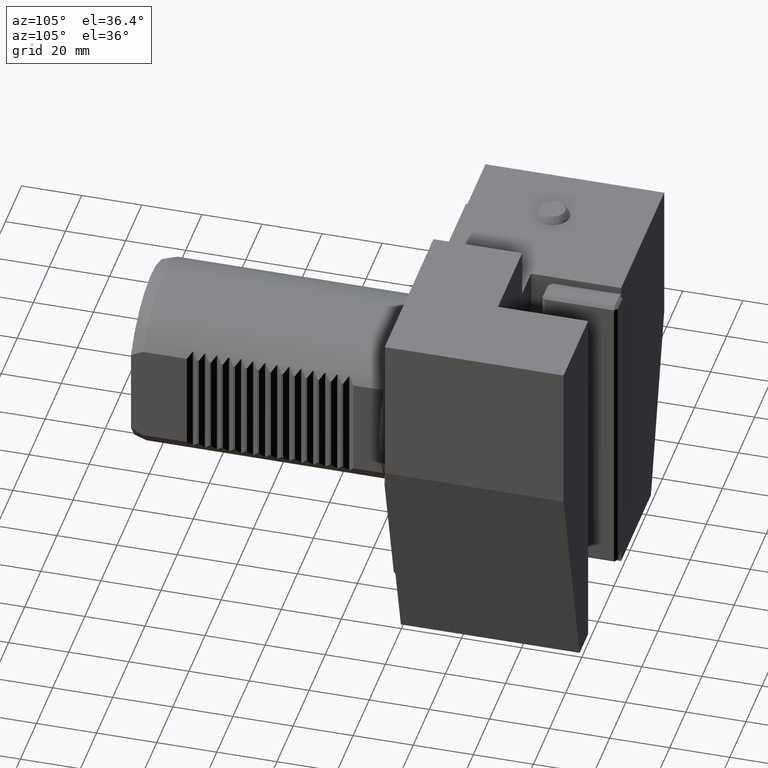
[diagram: clean part render]
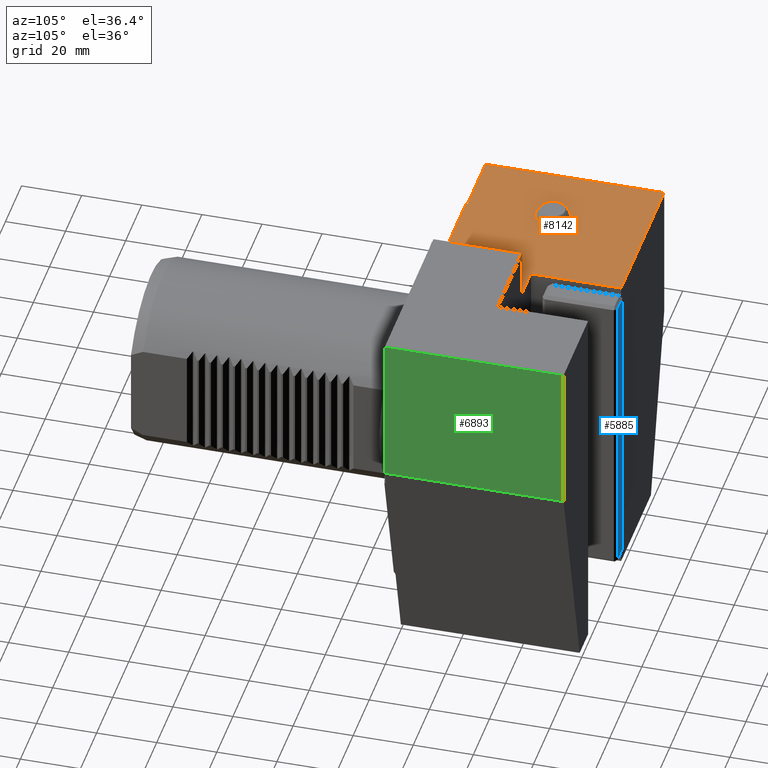
[diagram: same view with three faces highlighted in distinct colors, each labeled with its STEP entity id]
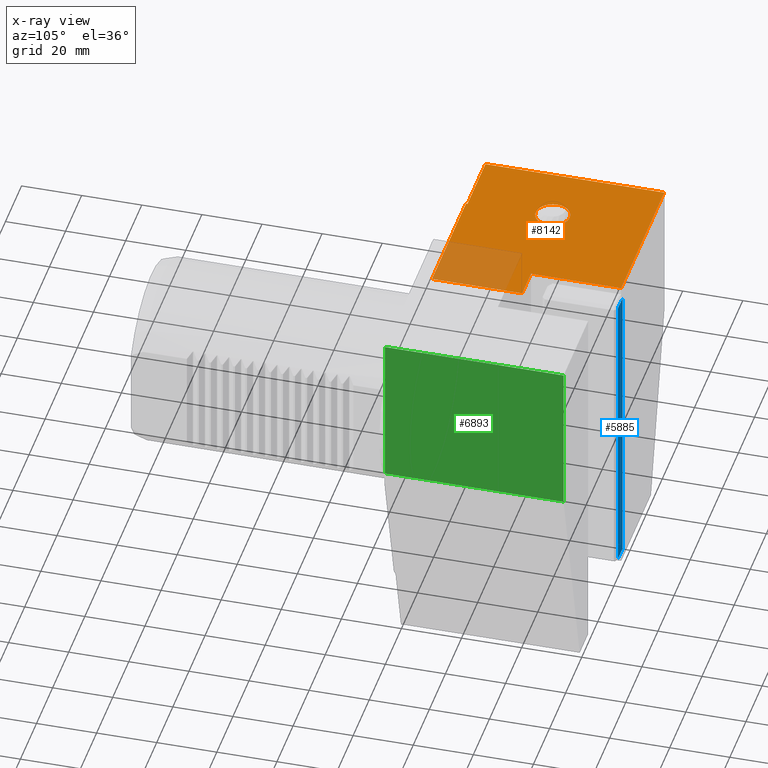
[diagram: x-ray of the same camera — body ghosted, the three highlighted faces saturated]
A machine part, auxiliary view with three faces highlighted in distinct colors.
The next image is the same camera in x-ray (body ghosted, the three faces saturated) — at least one of them is partly hidden behind the body in this view.
Their STEP definitions:

[orange] entity #8142 — the highlighted planar face has unit normal (-0, 0, 1).
#117 = LINE ( 'NONE', #4486, #17101 ) ;
#141 = LINE ( 'NONE', #6569, #13333 ) ;
#379 = DIRECTION ( 'NONE',  ( 1.838841177024792856E-16, -1.000000000000000000, 0.000000000000000000 ) ) ;
#688 = CARTESIAN_POINT ( 'NONE',  ( -40.24922359499620939, -5.213768408828317327E-15, 46.50000000000000000 ) ) ;
#690 = ORIENTED_EDGE ( 'NONE', *, *, #12180, .F. ) ;
#745 = VERTEX_POINT ( 'NONE', #7864 ) ;
#1644 = EDGE_LOOP ( 'NONE', ( #690, #13263, #18852, #10555, #18904, #2037, #10978, #17504 ) ) ;
#2037 = ORIENTED_EDGE ( 'NONE', *, *, #8808, .F. ) ;
#2222 = VERTEX_POINT ( 'NONE', #8636 ) ;
#2811 = VERTEX_POINT ( 'NONE', #15025 ) ;
#3014 = DIRECTION ( 'NONE',  ( -1.295371175675670527E-16, 1.000000000000000000, -0.000000000000000000 ) ) ;
#3052 = CARTESIAN_POINT ( 'NONE',  ( -32.14999999999999147, -5.085353770183706577E-16, 46.50000000000000000 ) ) ;
#3674 = CARTESIAN_POINT ( 'NONE',  ( -41.60000000000001563, 28.50000000000000000, 46.50000000000000000 ) ) ;
#4011 = DIRECTION ( 'NONE',  ( -1.295371175675670281E-16, 1.000000000000000000, -0.000000000000000000 ) ) ;
#4180 = DIRECTION ( 'NONE',  ( 1.000000000000000000, 0.000000000000000000, 0.000000000000000000 ) ) ;
#4462 = DIRECTION ( 'NONE',  ( -0.000000000000000000, 0.000000000000000000, 1.000000000000000000 ) ) ;
#4486 = CARTESIAN_POINT ( 'NONE',  ( 2.000000000000009326, -28.00000000000001776, 46.50000000000000000 ) ) ;
#4910 = EDGE_CURVE ( 'NONE', #2811, #7397, #141, .T. ) ;
#4931 = DIRECTION ( 'NONE',  ( -1.000000000000000000, -1.295371175675670281E-16, 0.000000000000000000 ) ) ;
#5472 = LINE ( 'NONE', #14524, #12101 ) ;
#5527 = VERTEX_POINT ( 'NONE', #18070 ) ;
#5738 = VERTEX_POINT ( 'NONE', #19752 ) ;
#5818 = PLANE ( 'NONE',  #7810 ) ;
#5924 = FACE_OUTER_BOUND ( 'NONE', #1644, .T. ) ;
#6569 = CARTESIAN_POINT ( 'NONE',  ( -61.50000000000000000, 0.4999999999999962252, 46.50000000000000000 ) ) ;
#7248 = DIRECTION ( 'NONE',  ( 1.000000000000000000, 1.075797504481740896E-16, 0.000000000000000000 ) ) ;
#7312 = VERTEX_POINT ( 'NONE', #11038 ) ;
#7316 = LINE ( 'NONE', #688, #18583 ) ;
#7397 = VERTEX_POINT ( 'NONE', #7860 ) ;
#7454 = DIRECTION ( 'NONE',  ( 1.000000000000000000, 0.000000000000000000, 0.000000000000000000 ) ) ;
#7493 = ORIENTED_EDGE ( 'NONE', *, *, #16817, .F. ) ;
#7671 = EDGE_CURVE ( 'NONE', #10462, #745, #19827, .T. ) ;
#7686 = CARTESIAN_POINT ( 'NONE',  ( -62.49999999999998579, 30.00000000000000000, 46.50000000000000000 ) ) ;
#7810 = AXIS2_PLACEMENT_3D ( 'NONE', #15074, #4462, #7454 ) ;
#7860 = CARTESIAN_POINT ( 'NONE',  ( -62.49999999999999289, 0.4999999999999970024, 46.50000000000000000 ) ) ;
#7864 = CARTESIAN_POINT ( 'NONE',  ( 2.000000000000001776, 30.00000000000000000, 46.50000000000000000 ) ) ;
#7884 = DIRECTION ( 'NONE',  ( -1.295371175675670527E-16, 1.000000000000000000, -0.000000000000000000 ) ) ;
#8142 = ADVANCED_FACE ( 'Defeature completata2_79', ( #12299, #5924 ), #5818, .T. ) ;
#8636 = CARTESIAN_POINT ( 'NONE',  ( 2.000000000000005773, 0.000000000000000000, 46.50000000000000000 ) ) ;
#8796 = CARTESIAN_POINT ( 'NONE',  ( -62.50000000000000000, 59.99999999999998579, 46.50000000000000000 ) ) ;
#8808 = EDGE_CURVE ( 'NONE', #2222, #7312, #14228, .T. ) ;
#8871 = AXIS2_PLACEMENT_3D ( 'NONE', #3674, #19555, #14617 ) ;
#9542 = CARTESIAN_POINT ( 'NONE',  ( -62.49999999999998579, -28.00000000000002487, 46.50000000000000000 ) ) ;
#9687 = DIRECTION ( 'NONE',  ( -1.000000000000000000, -1.295371175675670281E-16, 0.000000000000000000 ) ) ;
#9929 = CARTESIAN_POINT ( 'NONE',  ( -9.000000000000003553, 30.00000000000000000, 46.49999999999992895 ) ) ;
#10462 = VERTEX_POINT ( 'NONE', #9929 ) ;
#10555 = ORIENTED_EDGE ( 'NONE', *, *, #4910, .F. ) ;
#10616 = CARTESIAN_POINT ( 'NONE',  ( -62.50000000000000000, 59.99999999999998579, 46.50000000000000000 ) ) ;
#10978 = ORIENTED_EDGE ( 'NONE', *, *, #16198, .T. ) ;
#11038 = CARTESIAN_POINT ( 'NONE',  ( -40.24922359499620939, -4.206666086877655496E-15, 46.50000000000000000 ) ) ;
#11091 = VECTOR ( 'NONE', #9687, 1000.000000000000000 ) ;
#11273 = EDGE_LOOP ( 'NONE', ( #7493 ) ) ;
#11804 = VECTOR ( 'NONE', #3014, 1000.000000000000000 ) ;
#12101 = VECTOR ( 'NONE', #379, 1000.000000000000000 ) ;
#12180 = EDGE_CURVE ( 'NONE', #5738, #10462, #5472, .T. ) ;
#12299 = FACE_BOUND ( 'NONE', #11273, .T. ) ;
#13263 = ORIENTED_EDGE ( 'NONE', *, *, #15670, .F. ) ;
#13333 = VECTOR ( 'NONE', #4931, 1000.000000000000000 ) ;
#13468 = EDGE_CURVE ( 'NONE', #7397, #14028, #13988, .T. ) ;
#13988 = LINE ( 'NONE', #9542, #11804 ) ;
#14028 = VERTEX_POINT ( 'NONE', #10616 ) ;
#14228 = LINE ( 'NONE', #3052, #11091 ) ;
#14524 = CARTESIAN_POINT ( 'NONE',  ( -8.999999999999987566, -28.00000000000001421, 46.50000000000000000 ) ) ;
#14617 = DIRECTION ( 'NONE',  ( 1.000000000000000000, 0.000000000000000000, 0.000000000000000000 ) ) ;
#15025 = CARTESIAN_POINT ( 'NONE',  ( -40.24922359499620939, 0.4999999999999985012, 46.50000000000000000 ) ) ;
#15074 = CARTESIAN_POINT ( 'NONE',  ( -62.49999999999998579, -28.00000000000002487, 46.50000000000000000 ) ) ;
#15670 = EDGE_CURVE ( 'NONE', #14028, #5738, #16417, .T. ) ;
#16198 = EDGE_CURVE ( 'NONE', #2222, #745, #117, .T. ) ;
#16417 = LINE ( 'NONE', #8796, #18059 ) ;
#16817 = EDGE_CURVE ( 'NONE', #5527, #5527, #17743, .T. ) ;
#17101 = VECTOR ( 'NONE', #7884, 1000.000000000000000 ) ;
#17504 = ORIENTED_EDGE ( 'NONE', *, *, #7671, .F. ) ;
#17743 = CIRCLE ( 'NONE', #8871, 5.671237021169534209 ) ;
#18059 = VECTOR ( 'NONE', #7248, 1000.000000000000000 ) ;
#18070 = CARTESIAN_POINT ( 'NONE',  ( -35.92876297883048409, 28.50000000000000000, 46.50000000000000000 ) ) ;
#18583 = VECTOR ( 'NONE', #4011, 1000.000000000000000 ) ;
#18633 = VECTOR ( 'NONE', #4180, 1000.000000000000000 ) ;
#18852 = ORIENTED_EDGE ( 'NONE', *, *, #13468, .F. ) ;
#18904 = ORIENTED_EDGE ( 'NONE', *, *, #19878, .F. ) ;
#19555 = DIRECTION ( 'NONE',  ( -0.000000000000000000, 0.000000000000000000, 1.000000000000000000 ) ) ;
#19752 = CARTESIAN_POINT ( 'NONE',  ( -9.000000000000007105, 59.99999999999999289, 46.50000000000000000 ) ) ;
#19827 = LINE ( 'NONE', #7686, #18633 ) ;
#19878 = EDGE_CURVE ( 'NONE', #7312, #2811, #7316, .T. ) ;

[blue] entity #5885 — the highlighted planar face has unit normal (0, -1, 0).
#714 = DIRECTION ( 'NONE',  ( 1.000000000000000000, 1.838841177024793102E-16, 0.000000000000000000 ) ) ;
#1112 = VERTEX_POINT ( 'NONE', #4098 ) ;
#1285 = LINE ( 'NONE', #7820, #18983 ) ;
#1370 = ORIENTED_EDGE ( 'NONE', *, *, #9801, .T. ) ;
#2987 = VECTOR ( 'NONE', #714, 1000.000000000000000 ) ;
#3444 = VERTEX_POINT ( 'NONE', #5720 ) ;
#4064 = ORIENTED_EDGE ( 'NONE', *, *, #12454, .T. ) ;
#4098 = CARTESIAN_POINT ( 'NONE',  ( -7.000000000000007994, 60.99999999999998579, -56.00000000000001421 ) ) ;
#5246 = VERTEX_POINT ( 'NONE', #13121 ) ;
#5359 = LINE ( 'NONE', #17699, #13136 ) ;
#5720 = CARTESIAN_POINT ( 'NONE',  ( -7.000000000000007994, 60.99999999999998579, 43.99999999999999289 ) ) ;
#5806 = CARTESIAN_POINT ( 'NONE',  ( -8.673617379884035472E-15, 60.99999999999998579, 43.99999999999999289 ) ) ;
#5884 = DIRECTION ( 'NONE',  ( 1.838841177024793102E-16, -1.000000000000000000, 0.000000000000000000 ) ) ;
#5885 = ADVANCED_FACE ( 'Defeature completata1_2', ( #15147 ), #16785, .F. ) ;
#7676 = VERTEX_POINT ( 'NONE', #18379 ) ;
#7820 = CARTESIAN_POINT ( 'NONE',  ( -7.000000000000007994, 60.99999999999998579, 44.99999999999999289 ) ) ;
#8195 = ORIENTED_EDGE ( 'NONE', *, *, #19625, .T. ) ;
#9801 = EDGE_CURVE ( 'NONE', #3444, #5246, #19389, .T. ) ;
#10151 = CARTESIAN_POINT ( 'NONE',  ( -1.000000000000009104, 60.99999999999998579, -57.00000000000001421 ) ) ;
#11634 = DIRECTION ( 'NONE',  ( -1.000000000000000000, -1.838841177024793102E-16, 0.000000000000000000 ) ) ;
#12262 = CARTESIAN_POINT ( 'NONE',  ( -8.673617379884035472E-15, 60.99999999999998579, 44.99999999999999289 ) ) ;
#12454 = EDGE_CURVE ( 'NONE', #1112, #3444, #1285, .T. ) ;
#13121 = CARTESIAN_POINT ( 'NONE',  ( -1.000000000000009104, 60.99999999999998579, 43.99999999999999289 ) ) ;
#13136 = VECTOR ( 'NONE', #11634, 1000.000000000000000 ) ;
#14821 = ORIENTED_EDGE ( 'NONE', *, *, #14850, .T. ) ;
#14850 = EDGE_CURVE ( 'NONE', #7676, #1112, #5359, .T. ) ;
#15147 = FACE_OUTER_BOUND ( 'NONE', #16050, .T. ) ;
#15243 = DIRECTION ( 'NONE',  ( 1.000000000000000000, 1.838841177024793102E-16, 0.000000000000000000 ) ) ;
#15298 = AXIS2_PLACEMENT_3D ( 'NONE', #12262, #5884, #15243 ) ;
#15310 = VECTOR ( 'NONE', #16433, 1000.000000000000000 ) ;
#15832 = DIRECTION ( 'NONE',  ( 1.549043783309398025E-32, 0.000000000000000000, 1.000000000000000000 ) ) ;
#16050 = EDGE_LOOP ( 'NONE', ( #8195, #14821, #4064, #1370 ) ) ;
#16433 = DIRECTION ( 'NONE',  ( -1.549043783309398025E-32, 0.000000000000000000, -1.000000000000000000 ) ) ;
#16785 = PLANE ( 'NONE',  #15298 ) ;
#17699 = CARTESIAN_POINT ( 'NONE',  ( -8.673617379884035472E-15, 60.99999999999998579, -56.00000000000001421 ) ) ;
#18164 = LINE ( 'NONE', #10151, #15310 ) ;
#18379 = CARTESIAN_POINT ( 'NONE',  ( -1.000000000000009104, 60.99999999999998579, -56.00000000000001421 ) ) ;
#18983 = VECTOR ( 'NONE', #15832, 1000.000000000000000 ) ;
#19389 = LINE ( 'NONE', #5806, #2987 ) ;
#19625 = EDGE_CURVE ( 'NONE', #5246, #7676, #18164, .T. ) ;

[green] entity #6893 — the highlighted planar face has unit normal (1, 0, 0).
#1618 = EDGE_LOOP ( 'NONE', ( #19278, #12668, #8529, #4606 ) ) ;
#2373 = CARTESIAN_POINT ( 'NONE',  ( 62.49999999999999289, 0.5000000000000073275, 62.50000000000000000 ) ) ;
#3023 = DIRECTION ( 'NONE',  ( -1.295371175675670527E-16, 1.000000000000000000, -0.000000000000000000 ) ) ;
#3060 = CARTESIAN_POINT ( 'NONE',  ( 62.50000000000001421, 0.5000000000000108802, 12.14101615137733070 ) ) ;
#3326 = LINE ( 'NONE', #7806, #13022 ) ;
#3488 = EDGE_CURVE ( 'NONE', #19211, #13129, #14019, .T. ) ;
#4606 = ORIENTED_EDGE ( 'NONE', *, *, #12296, .F. ) ;
#5158 = AXIS2_PLACEMENT_3D ( 'NONE', #7271, #10466, #18376 ) ;
#6676 = EDGE_CURVE ( 'NONE', #20406, #19211, #3326, .T. ) ;
#6893 = ADVANCED_FACE ( 'Defeature completata2_76', ( #7368 ), #10661, .T. ) ;
#7271 = CARTESIAN_POINT ( 'NONE',  ( 62.50000000000000000, -28.00000000000001066, 62.50000000000000000 ) ) ;
#7368 = FACE_OUTER_BOUND ( 'NONE', #1618, .T. ) ;
#7376 = CARTESIAN_POINT ( 'NONE',  ( 62.50000000000001421, -28.00000000000001066, 12.14101615137733070 ) ) ;
#7806 = CARTESIAN_POINT ( 'NONE',  ( 62.50000000000000000, -28.00000000000001066, 62.50000000000000000 ) ) ;
#8169 = VECTOR ( 'NONE', #15455, 1000.000000000000000 ) ;
#8529 = ORIENTED_EDGE ( 'NONE', *, *, #6676, .F. ) ;
#8653 = CARTESIAN_POINT ( 'NONE',  ( 62.50000000000001421, 0.5000000000000122125, 1.708578645412896360E-14 ) ) ;
#9903 = VERTEX_POINT ( 'NONE', #3060 ) ;
#10367 = LINE ( 'NONE', #7376, #11329 ) ;
#10466 = DIRECTION ( 'NONE',  ( 1.000000000000000000, 1.295371175675670527E-16, 1.377886004365238952E-16 ) ) ;
#10661 = PLANE ( 'NONE',  #5158 ) ;
#11329 = VECTOR ( 'NONE', #13779, 1000.000000000000000 ) ;
#11777 = CARTESIAN_POINT ( 'NONE',  ( 62.50000000000000000, 60.00000000000000000, 12.14101615137733070 ) ) ;
#12296 = EDGE_CURVE ( 'NONE', #9903, #20406, #16572, .T. ) ;
#12668 = ORIENTED_EDGE ( 'NONE', *, *, #3488, .F. ) ;
#13022 = VECTOR ( 'NONE', #3023, 1000.000000000000000 ) ;
#13129 = VERTEX_POINT ( 'NONE', #11777 ) ;
#13779 = DIRECTION ( 'NONE',  ( -1.295371175675670527E-16, 1.000000000000000000, -0.000000000000000000 ) ) ;
#14019 = LINE ( 'NONE', #15345, #8169 ) ;
#15058 = VECTOR ( 'NONE', #19769, 1000.000000000000000 ) ;
#15345 = CARTESIAN_POINT ( 'NONE',  ( 62.49999999999999289, 60.00000000000000000, 62.50000000000000000 ) ) ;
#15455 = DIRECTION ( 'NONE',  ( 1.377886004365238952E-16, 0.000000000000000000, -1.000000000000000000 ) ) ;
#16572 = LINE ( 'NONE', #8653, #15058 ) ;
#17082 = CARTESIAN_POINT ( 'NONE',  ( 62.49999999999999289, 60.00000000000000000, 62.50000000000000000 ) ) ;
#17220 = EDGE_CURVE ( 'NONE', #9903, #13129, #10367, .T. ) ;
#18376 = DIRECTION ( 'NONE',  ( 1.377886004365238952E-16, 0.000000000000000000, -1.000000000000000000 ) ) ;
#19211 = VERTEX_POINT ( 'NONE', #17082 ) ;
#19278 = ORIENTED_EDGE ( 'NONE', *, *, #17220, .T. ) ;
#19769 = DIRECTION ( 'NONE',  ( -1.377886004365238952E-16, -1.784873813421651369E-32, 1.000000000000000000 ) ) ;
#20406 = VERTEX_POINT ( 'NONE', #2373 ) ;